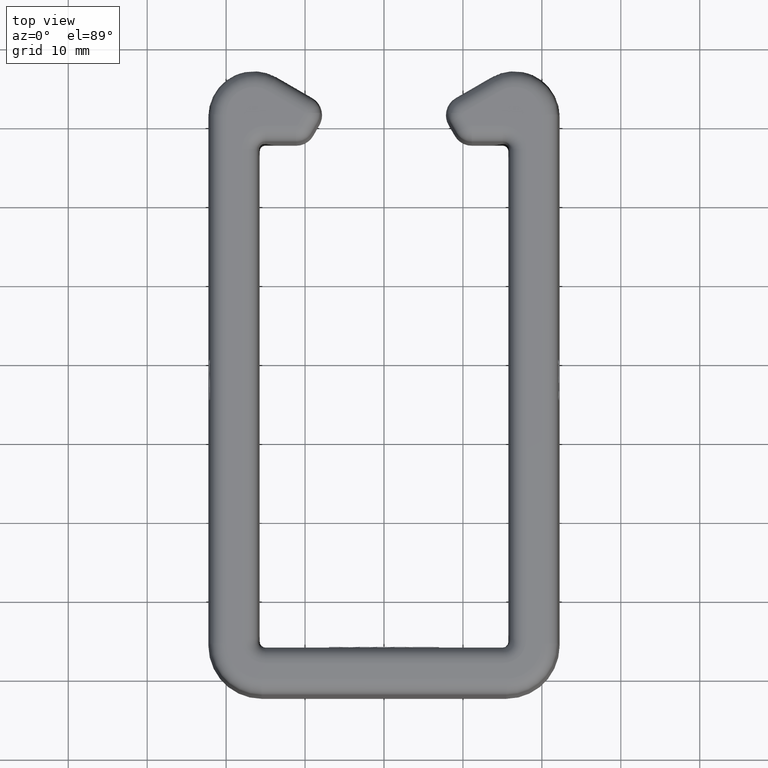
[diagram: clean part render]
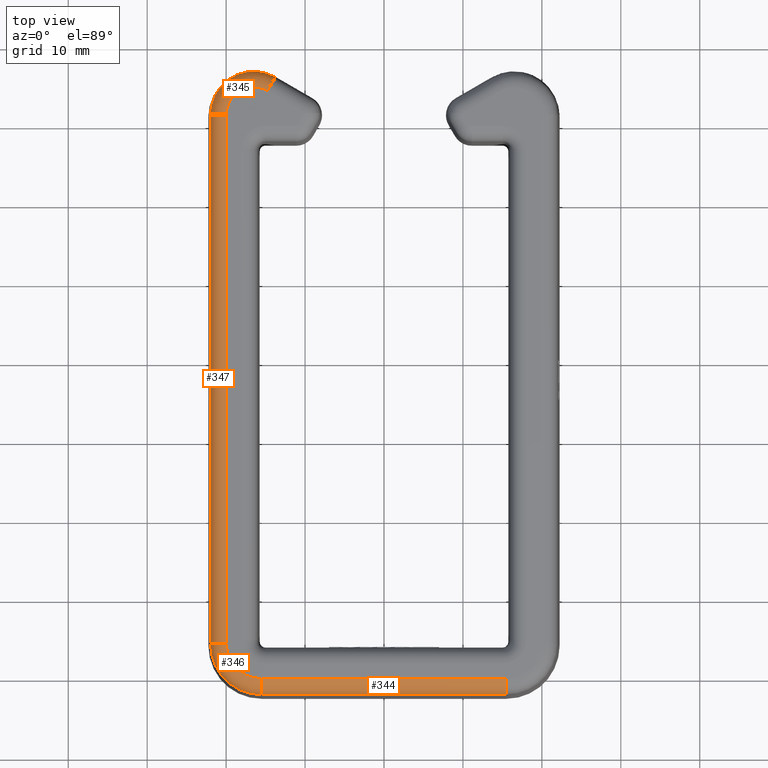
[diagram: same view with one multi-face feature highlighted, each face labeled with its STEP entity id]
A machine part, top view. The highlighted faces form ONE feature: a constant-radius fillet chain: 4 tangent blend faces with common blend radius 2 mm. The faces share edges in the B-rep.
Their STEP definitions:
[1] entity #345 (Torus):
#345=ADVANCED_FACE('',(#760),#761,.T.);
#760=FACE_OUTER_BOUND('',#1281,.T.);
#761=TOROIDAL_SURFACE('',#1282,3.48460547376901,2.0);
#1281=EDGE_LOOP('',(#3201,#3202,#3203,#3204));
#1282=AXIS2_PLACEMENT_3D('',#3205,#3206,#3207);
#3201=ORIENTED_EDGE('',*,*,#4043,.T.);
#3202=ORIENTED_EDGE('',*,*,#3970,.F.);
#3203=ORIENTED_EDGE('',*,*,#4041,.F.);
#3204=ORIENTED_EDGE('',*,*,#4006,.F.);
#3205=CARTESIAN_POINT('',(-16.5000000000135,71.4999999999833,15.0));
#3206=DIRECTION('',(0.0,0.0,-1.0));
#3207=DIRECTION('',(-1.0,0.0,0.0));
#3970=EDGE_CURVE('',#4819,#4821,#4822,.F.);
#4006=EDGE_CURVE('',#4875,#4878,#4879,.T.);
#4041=EDGE_CURVE('',#4878,#4819,#4920,.T.);
#4043=EDGE_CURVE('',#4875,#4821,#4922,.T.);
#4819=VERTEX_POINT('',#6915);
#4821=VERTEX_POINT('',#6918);
#4822=CIRCLE('',#6919,3.48460547376901);
#4875=VERTEX_POINT('',#6995);
#4878=VERTEX_POINT('',#7000);
#4879=CIRCLE('',#7001,5.48430086408179);
#4920=CIRCLE('',#7055,2.0);
#4922=CIRCLE('',#7057,2.0);
#6915=CARTESIAN_POINT('',(-14.757697263131,74.5177568624346,17.0));
#6918=CARTESIAN_POINT('',(-19.9846054737824,71.4999999999828,17.0));
#6919=AXIS2_PLACEMENT_3D('',#7634,#7635,#7636);
#6995=CARTESIAN_POINT('',(-21.9843008640952,71.4999999999826,15.0349048128745));
#7000=CARTESIAN_POINT('',(-13.7578495679758,76.2495438702768,15.0349048128745));
#7001=AXIS2_PLACEMENT_3D('',#7692,#7693,#7694);
#7055=AXIS2_PLACEMENT_3D('',#7771,#7772,#7773);
#7057=AXIS2_PLACEMENT_3D('',#7777,#7778,#7779);
#7634=CARTESIAN_POINT('',(-16.5000000000135,71.4999999999833,17.0));
#7635=DIRECTION('',(0.0,0.0,-1.0));
#7636=DIRECTION('',(-1.0,0.0,0.0));
#7692=CARTESIAN_POINT('',(-16.5000000000135,71.4999999999833,15.0349048128745));
#7693=DIRECTION('',(0.0,0.0,-1.0));
#7694=DIRECTION('',(-1.0,0.0,0.0));
#7771=CARTESIAN_POINT('',(-14.7576972631309,74.5177568624348,15.0));
#7772=DIRECTION('',(0.86602540378477,-0.499999999999426,7.51157299368867E-16));
#7773=DIRECTION('',(0.499999999999426,0.86602540378477,-6.25464096655926E-31));
#7777=CARTESIAN_POINT('',(-19.9846054737822,71.4999999999828,15.0));
#7778=DIRECTION('',(-1.3879901784085E-13,1.0,0.0));
#7779=DIRECTION('',(-1.0,-1.3879901784085E-13,0.0));
[2] entity #347 (Cylinder):
#347=ADVANCED_FACE('',(#764),#765,.T.);
#764=FACE_OUTER_BOUND('',#1285,.T.);
#765=CYLINDRICAL_SURFACE('',#1286,2.0);
#1285=EDGE_LOOP('',(#3215,#3216,#3217,#3218));
#1286=AXIS2_PLACEMENT_3D('',#3219,#3220,#3221);
#3215=ORIENTED_EDGE('',*,*,#4043,.F.);
#3216=ORIENTED_EDGE('',*,*,#4004,.F.);
#3217=ORIENTED_EDGE('',*,*,#4044,.F.);
#3218=ORIENTED_EDGE('',*,*,#3971,.F.);
#3219=CARTESIAN_POINT('',(-19.9846054737729,4.95000000000765,15.0));
#3220=DIRECTION('',(-1.39192140400773E-13,1.0,0.0));
#3221=DIRECTION('',(1.0,1.39192140400773E-13,0.0));
#3971=EDGE_CURVE('',#4821,#4823,#4824,.F.);
#4004=EDGE_CURVE('',#4872,#4875,#4876,.F.);
#4043=EDGE_CURVE('',#4875,#4821,#4922,.T.);
#4044=EDGE_CURVE('',#4823,#4872,#4923,.T.);
#4821=VERTEX_POINT('',#6918);
#4823=VERTEX_POINT('',#6920);
#4824=LINE('',#6921,#6922);
#4872=VERTEX_POINT('',#6991);
#4875=VERTEX_POINT('',#6995);
#4876=LINE('',#6996,#6997);
#4922=CIRCLE('',#7057,2.0);
#4923=CIRCLE('',#7058,2.0);
#6918=CARTESIAN_POINT('',(-19.9846054737824,71.4999999999828,17.0));
#6920=CARTESIAN_POINT('',(-19.9846054737728,4.49999999998547,17.0));
#6921=CARTESIAN_POINT('',(-19.9846054737728,4.49999999998547,17.0));
#6922=VECTOR('',#7637,1000.0);
#6991=CARTESIAN_POINT('',(-21.9843008640856,4.4999999999852,15.0349048128745));
#6995=CARTESIAN_POINT('',(-21.9843008640952,71.4999999999826,15.0349048128745));
#6996=CARTESIAN_POINT('',(-21.984300864095,71.4999999999826,15.0349048128745));
#6997=VECTOR('',#7690,1000.0);
#7057=AXIS2_PLACEMENT_3D('',#7777,#7778,#7779);
#7058=AXIS2_PLACEMENT_3D('',#7780,#7781,#7782);
#7637=DIRECTION('',(-1.39192140400773E-13,1.0,0.0));
#7690=DIRECTION('',(1.39192140400773E-13,-1.0,3.94370360647266E-31));
#7777=CARTESIAN_POINT('',(-19.9846054737822,71.4999999999828,15.0));
#7778=DIRECTION('',(-1.3879901784085E-13,1.0,0.0));
#7779=DIRECTION('',(-1.0,-1.3879901784085E-13,0.0));
#7780=CARTESIAN_POINT('',(-19.9846054737728,4.49999999998547,15.0));
#7781=DIRECTION('',(1.39232764771603E-13,-1.0,0.0));
#7782=DIRECTION('',(1.0,1.39232764771603E-13,0.0));
[3] entity #346 (Torus):
#346=ADVANCED_FACE('',(#762),#763,.T.);
#762=FACE_OUTER_BOUND('',#1283,.T.);
#763=TOROIDAL_SURFACE('',#1284,4.4846054737713,2.0);
#1283=EDGE_LOOP('',(#3208,#3209,#3210,#3211));
#1284=AXIS2_PLACEMENT_3D('',#3212,#3213,#3214);
#3208=ORIENTED_EDGE('',*,*,#4044,.T.);
#3209=ORIENTED_EDGE('',*,*,#4002,.F.);
#3210=ORIENTED_EDGE('',*,*,#4042,.F.);
#3211=ORIENTED_EDGE('',*,*,#3972,.F.);
#3212=CARTESIAN_POINT('',(-15.5000000000041,4.4999999999861,15.0));
#3213=DIRECTION('',(0.0,0.0,-1.0));
#3214=DIRECTION('',(-1.0,0.0,0.0));
#3972=EDGE_CURVE('',#4823,#4825,#4826,.F.);
#4002=EDGE_CURVE('',#4869,#4872,#4873,.T.);
#4042=EDGE_CURVE('',#4825,#4869,#4921,.T.);
#4044=EDGE_CURVE('',#4823,#4872,#4923,.T.);
#4823=VERTEX_POINT('',#6920);
#4825=VERTEX_POINT('',#6923);
#4826=CIRCLE('',#6924,4.4846054737713);
#4869=VERTEX_POINT('',#6986);
#4872=VERTEX_POINT('',#6991);
#4873=CIRCLE('',#6992,6.48430086408409);
#4921=CIRCLE('',#7056,2.0);
#4923=CIRCLE('',#7058,2.0);
#6920=CARTESIAN_POINT('',(-19.9846054737728,4.49999999998547,17.0));
#6923=CARTESIAN_POINT('',(-15.5000000000003,0.0153945262147976,17.0));
#6924=AXIS2_PLACEMENT_3D('',#7638,#7639,#7640);
#6986=CARTESIAN_POINT('',(-15.4999999999986,-1.98430086409799,15.0349048128745));
#6991=CARTESIAN_POINT('',(-21.9843008640856,4.4999999999852,15.0349048128745));
#6992=AXIS2_PLACEMENT_3D('',#7686,#7687,#7688);
#7056=AXIS2_PLACEMENT_3D('',#7774,#7775,#7776);
#7058=AXIS2_PLACEMENT_3D('',#7780,#7781,#7782);
#7638=CARTESIAN_POINT('',(-15.5000000000041,4.4999999999861,17.0));
#7639=DIRECTION('',(0.0,0.0,-1.0));
#7640=DIRECTION('',(-1.0,0.0,0.0));
#7686=CARTESIAN_POINT('',(-15.5000000000041,4.4999999999861,15.0349048128745));
#7687=DIRECTION('',(0.0,0.0,-1.0));
#7688=DIRECTION('',(-1.0,0.0,0.0));
#7774=CARTESIAN_POINT('',(-15.5000000000003,0.0153945262147976,15.0));
#7775=DIRECTION('',(1.0,8.32794107045099E-13,0.0));
#7776=DIRECTION('',(-8.32794107045099E-13,1.0,0.0));
#7780=CARTESIAN_POINT('',(-19.9846054737728,4.49999999998547,15.0));
#7781=DIRECTION('',(1.39232764771603E-13,-1.0,0.0));
#7782=DIRECTION('',(1.0,1.39232764771603E-13,0.0));
[4] entity #344 (Cylinder):
#344=ADVANCED_FACE('',(#758),#759,.T.);
#758=FACE_OUTER_BOUND('',#1279,.T.);
#759=CYLINDRICAL_SURFACE('',#1280,2.0);
#1279=EDGE_LOOP('',(#3194,#3195,#3196,#3197));
#1280=AXIS2_PLACEMENT_3D('',#3198,#3199,#3200);
#3194=ORIENTED_EDGE('',*,*,#4042,.T.);
#3195=ORIENTED_EDGE('',*,*,#4000,.F.);
#3196=ORIENTED_EDGE('',*,*,#4040,.F.);
#3197=ORIENTED_EDGE('',*,*,#3973,.F.);
#3198=CARTESIAN_POINT('',(15.05,0.0153945262439132,15.0));
#3199=DIRECTION('',(-1.0,-8.32667268468864E-13,-0.0));
#3200=DIRECTION('',(-8.32667268468864E-13,1.0,0.0));
#3973=EDGE_CURVE('',#4825,#4827,#4828,.F.);
#4000=EDGE_CURVE('',#4866,#4869,#4870,.F.);
#4040=EDGE_CURVE('',#4827,#4866,#4919,.T.);
#4042=EDGE_CURVE('',#4825,#4869,#4921,.T.);
#4825=VERTEX_POINT('',#6923);
#4827=VERTEX_POINT('',#6925);
#4828=LINE('',#6926,#6927);
#4866=VERTEX_POINT('',#6982);
#4869=VERTEX_POINT('',#6986);
#4870=LINE('',#6987,#6988);
#4919=CIRCLE('',#7054,2.0);
#4921=CIRCLE('',#7056,2.0);
#6923=CARTESIAN_POINT('',(-15.5000000000003,0.0153945262147976,17.0));
#6925=CARTESIAN_POINT('',(15.5000000000017,0.0153945262442879,17.0));
#6926=CARTESIAN_POINT('',(15.5000000000017,0.0153945262442879,17.0));
#6927=VECTOR('',#7641,1000.0);
#6982=CARTESIAN_POINT('',(15.5000000000034,-1.9843008640685,15.0349048128745));
#6986=CARTESIAN_POINT('',(-15.4999999999986,-1.98430086409799,15.0349048128745));
#6987=CARTESIAN_POINT('',(-15.4999999999986,-1.98430086409431,15.0349048128745));
#6988=VECTOR('',#7684,1000.0);
#7054=AXIS2_PLACEMENT_3D('',#7768,#7769,#7770);
#7056=AXIS2_PLACEMENT_3D('',#7774,#7775,#7776);
#7641=DIRECTION('',(-1.0,-8.32667268468864E-13,0.0));
#7684=DIRECTION('',(1.0,8.32667268468864E-13,0.0));
#7768=CARTESIAN_POINT('',(15.5000000000017,0.0153945262442879,15.0));
#7769=DIRECTION('',(1.0,8.31926613183594E-13,0.0));
#7770=DIRECTION('',(-8.31926613183594E-13,1.0,0.0));
#7774=CARTESIAN_POINT('',(-15.5000000000003,0.0153945262147976,15.0));
#7775=DIRECTION('',(1.0,8.32794107045099E-13,0.0));
#7776=DIRECTION('',(-8.32794107045099E-13,1.0,0.0));